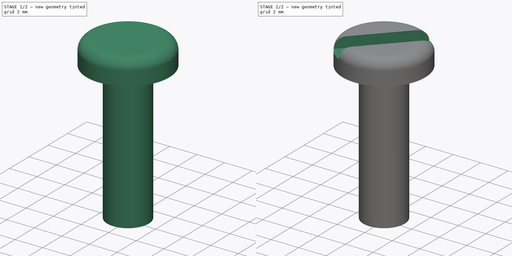
[diagram: build sequence overview — one tinted view per stage of 2, left to right]
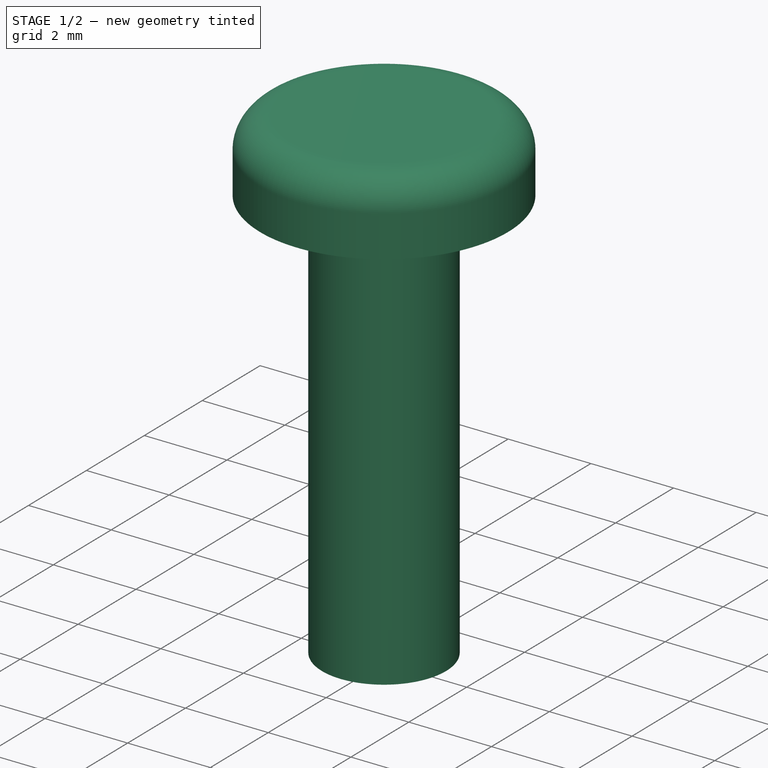
[diagram: stage 1 of 2 — iso view after this stage's code; geometry added in this stage tinted green]
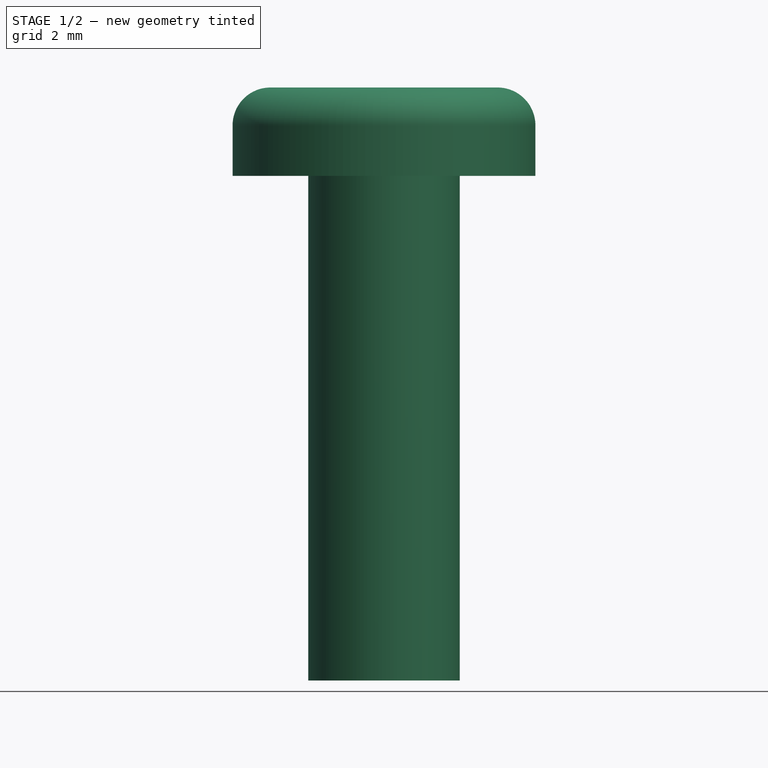
[diagram: stage 1 of 2 — front view after this stage's code; geometry added in this stage tinted green]
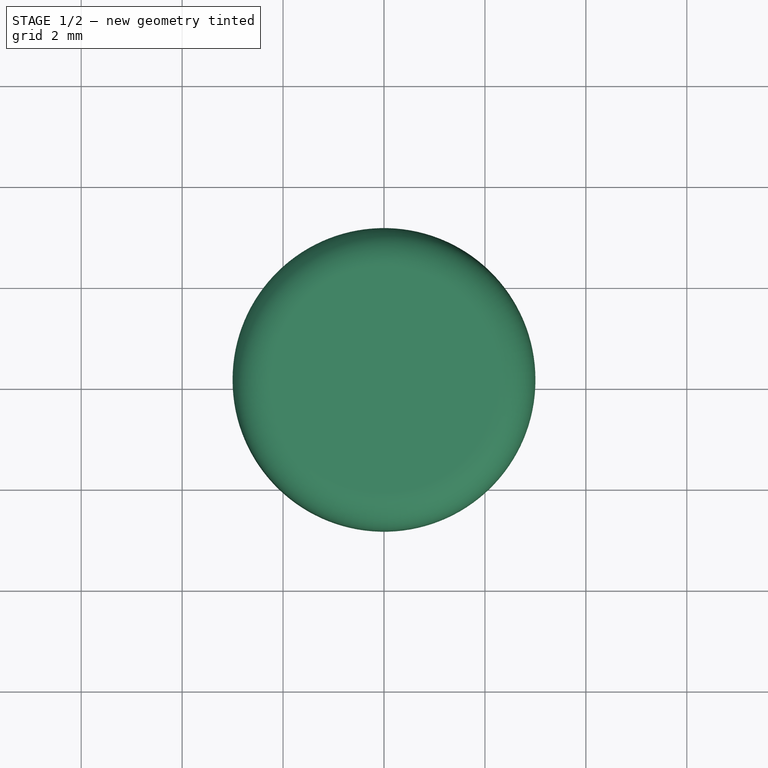
[diagram: stage 1 of 2 — top view after this stage's code; geometry added in this stage tinted green]
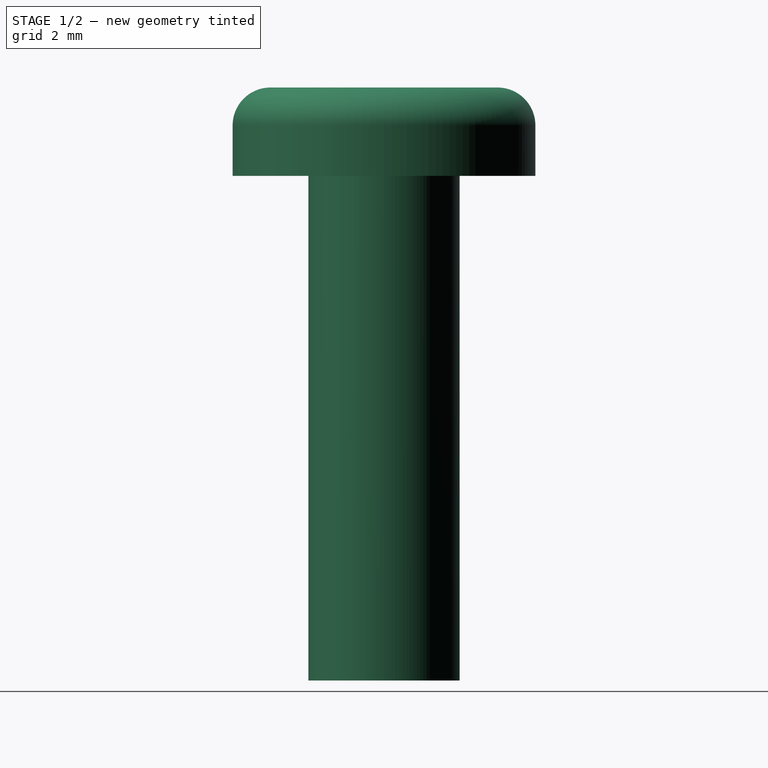
[diagram: stage 1 of 2 — right view after this stage's code; geometry added in this stage tinted green]
FCSTD DOCUMENT  (FreeCAD 0.19R)
Label: vis_tete_ronde_M3_10mm
License: All rights reserved
LicenseURL: http://en.wikipedia.org/wiki/All_rights_reserved
objects: Sketcher::SketchObject×2, PartDesign::Revolution×1, PartDesign::Pocket×1, PartDesign::Body×1
note: 7 computed .brp shape members not serialized (recipe doc carries the construction recipe); baked Part::Feature solids carry a one-line shape summary decoded from their .brp

FEATURE [Sketcher::SketchObject] Sketch
  FullyConstrained = true
  MapMode = 5
  Placement = pos=(0,0,0) rot=(1,0,0;1.5708rad)
  Support = -> [XZ_Plane]
  sketch-geometry (7):
    g0: LineSegment StartX=0 StartY=0 StartZ=0 EndX=0 EndY=11.75 EndZ=0
    g1: LineSegment StartX=0 StartY=11.75 StartZ=0 EndX=2.25 EndY=11.75 EndZ=0
    g2: LineSegment StartX=3 StartY=11 StartZ=0 EndX=3 EndY=10 EndZ=0
    g3: LineSegment StartX=3 StartY=10 StartZ=0 EndX=1.5 EndY=10 EndZ=0
    g4: LineSegment StartX=1.5 StartY=10 StartZ=0 EndX=1.5 EndY=0 EndZ=0
    g5: LineSegment StartX=1.5 StartY=0 StartZ=0 EndX=0 EndY=0 EndZ=0
    g6: ArcOfCircle CenterX=2.25 CenterY=11 CenterZ=0 NormalX=0 NormalY=0 NormalZ=1 AngleXU=0 Radius=0.75 StartAngle=0 EndAngle=1.5708
  constraints (19):
    c: Coincident(g-1,g0)
    c: PointOnObject(g0,g-2)
    c: Coincident(g0,g1)
    c: Horizontal(g1)
    c: Vertical(g2)
    c: Coincident(g2,g3)
    c: Horizontal(g3)
    c: Coincident(g3,g4)
    c: PointOnObject(g4,g-1)
    c: Vertical(g4)
    c: Coincident(g4,g5)
    c: Coincident(g5,g0)
    c: DistanceX(g5,g5) = 1.5
    c: DistanceX(g0,g2) = 3
    c: Tangent(g2,g6) = 1.5708
    c: Tangent(g1,g6) = 1.5708
    c: Radius(g6) = 0.75
    c: DistanceY(g3,g0) = 1.75
    c: DistanceY(g4,g4) = 10
FEATURE [PartDesign::Revolution] Revolution
  Angle = 360
  Axis = (0,-2e-16,1)
  Base = (0,0,0)
  Placement = pos=(0,0,0) rot=(1,0,0;1.5708rad)
  Profile = -> Sketch
  ReferenceAxis = -> Sketch [V_Axis]
  Reversed = true
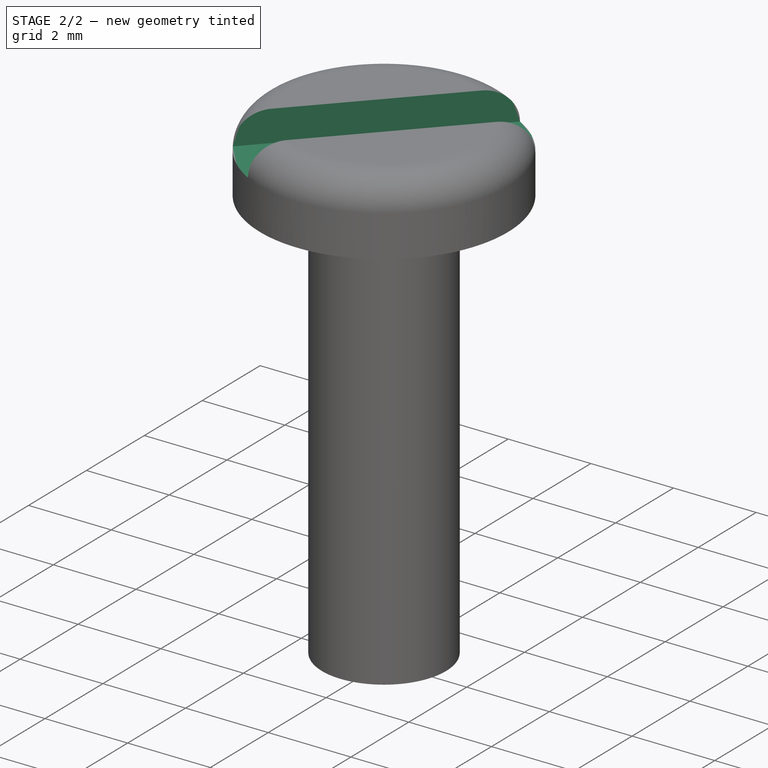
[diagram: stage 2 of 2 — iso view after this stage's code; geometry added in this stage tinted green]
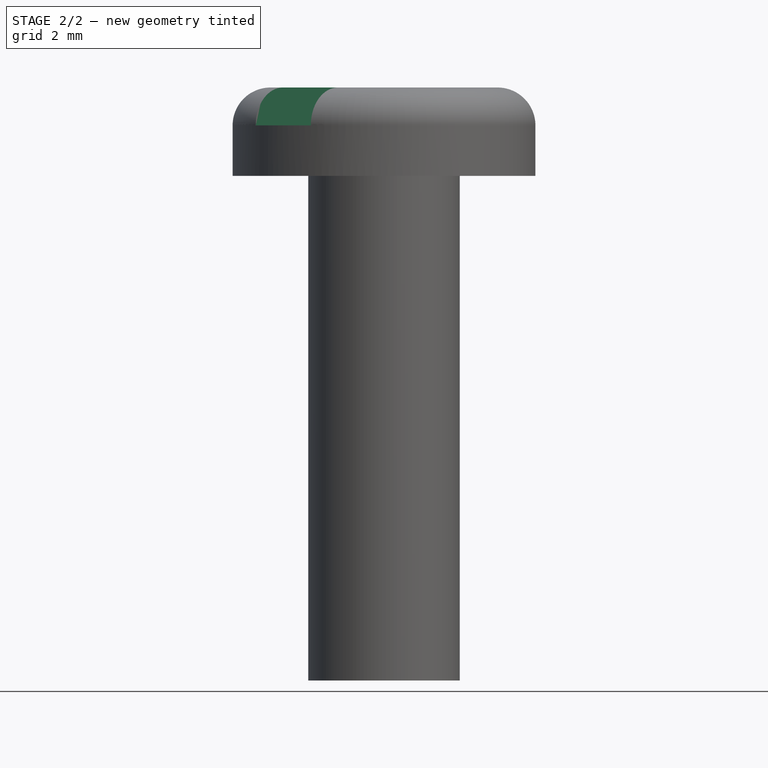
[diagram: stage 2 of 2 — front view after this stage's code; geometry added in this stage tinted green]
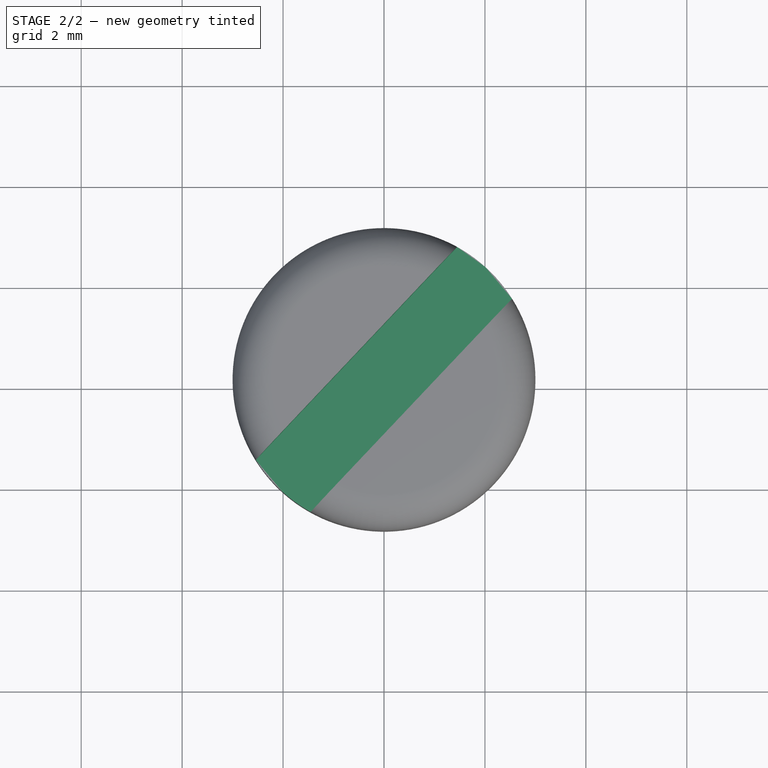
[diagram: stage 2 of 2 — top view after this stage's code; geometry added in this stage tinted green]
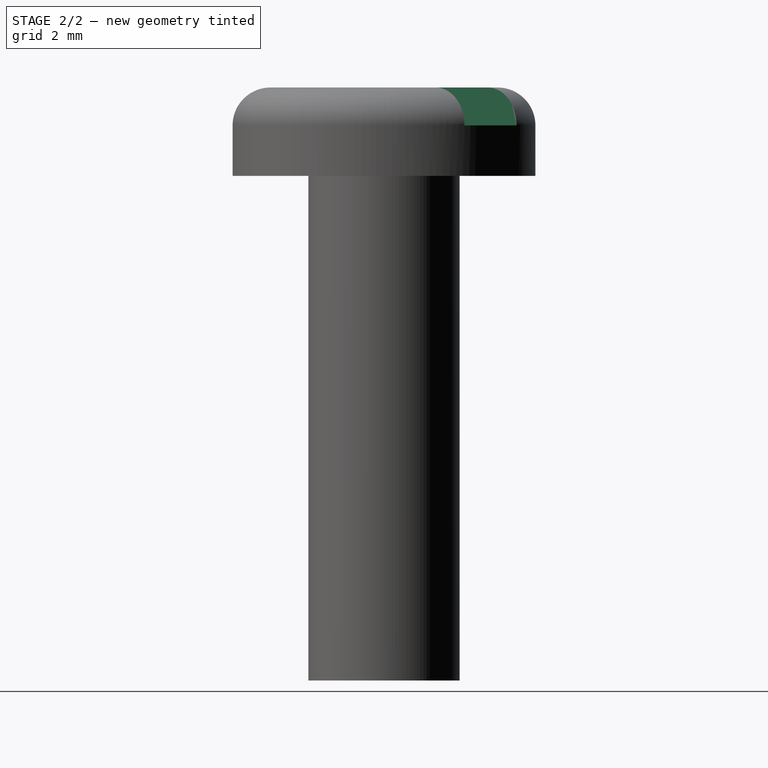
[diagram: stage 2 of 2 — right view after this stage's code; geometry added in this stage tinted green]
FEATURE [Sketcher::SketchObject] Sketch001
  FullyConstrained = false
  MapMode = 5
  Placement = pos=(0,-2.6e-15,11.75) rot=(0,0,1;3.14159rad)
  Support = -> [Revolution]
  sketch-geometry (6):
    g0: LineSegment StartX=-3.27478 StartY=-2.37271 StartZ=0 EndX=2.18469 EndY=3.4031 EndZ=0
    g1: LineSegment StartX=2.18469 StartY=3.4031 StartZ=0 EndX=3.27478 EndY=2.37271 EndZ=0
    g2: LineSegment StartX=3.27478 StartY=2.37271 StartZ=0 EndX=-2.18469 EndY=-3.4031 EndZ=0
    g3: LineSegment StartX=-2.18469 StartY=-3.4031 StartZ=0 EndX=-3.27478 EndY=-2.37271 EndZ=0
    g4: LineSegment StartX=2.18469 StartY=3.4031 StartZ=0 EndX=-2.18469 EndY=-3.4031 EndZ=0
    g5: LineSegment StartX=-3.27478 StartY=-2.37271 StartZ=0 EndX=3.27478 EndY=2.37271 EndZ=0
  constraints (14):
    c: Coincident(g0,g1)
    c: Coincident(g1,g2)
    c: Coincident(g2,g3)
    c: Coincident(g3,g0)
    c: Perpendicular(g3,g0)
    c: Perpendicular(g2,g3)
    c: Perpendicular(g2,g1)
    c: Coincident(g4,g0)
    c: Coincident(g4,g2)
    c: Coincident(g5,g0)
    c: Coincident(g5,g1)
    c: PointOnObject(g-1,g4)
    c: PointOnObject(g-1,g5)
    c: Distance(g0,g1) = 1.5
FEATURE [PartDesign::Pocket] Pocket
  BaseFeature = -> Revolution
  Length = 0.75
  Length2 = 100
  Placement = pos=(0,0,0) rot=(1,0,0;1.5708rad)
  Profile = -> Sketch001
  Type = 0
FEATURE [PartDesign::Body] Body
  Group = -> [Sketch,Revolution,Sketch001,Pocket]
  Origin = -> Origin
  Tip = -> Pocket
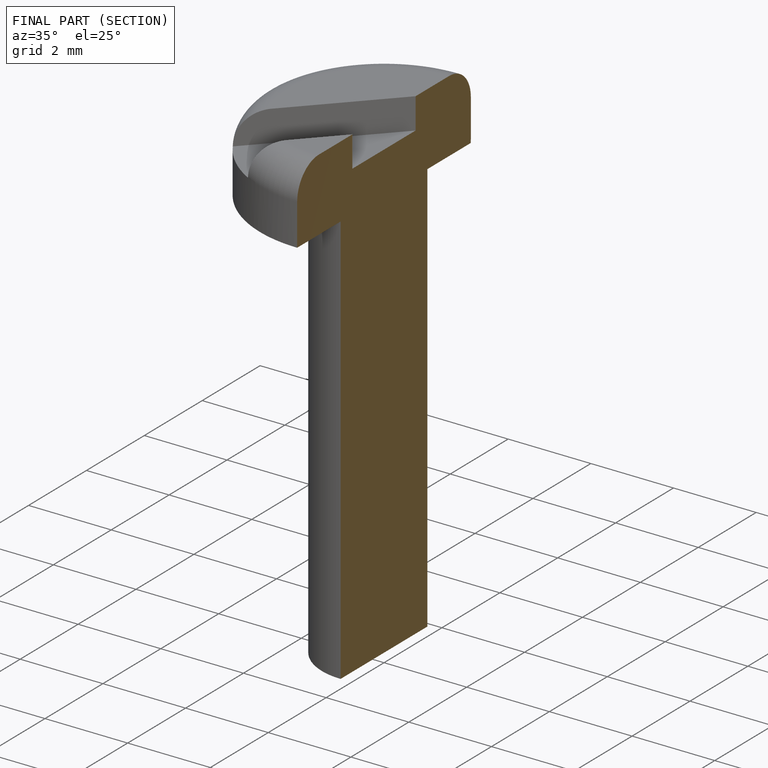
[diagram: finished part — half-section view (interior)]
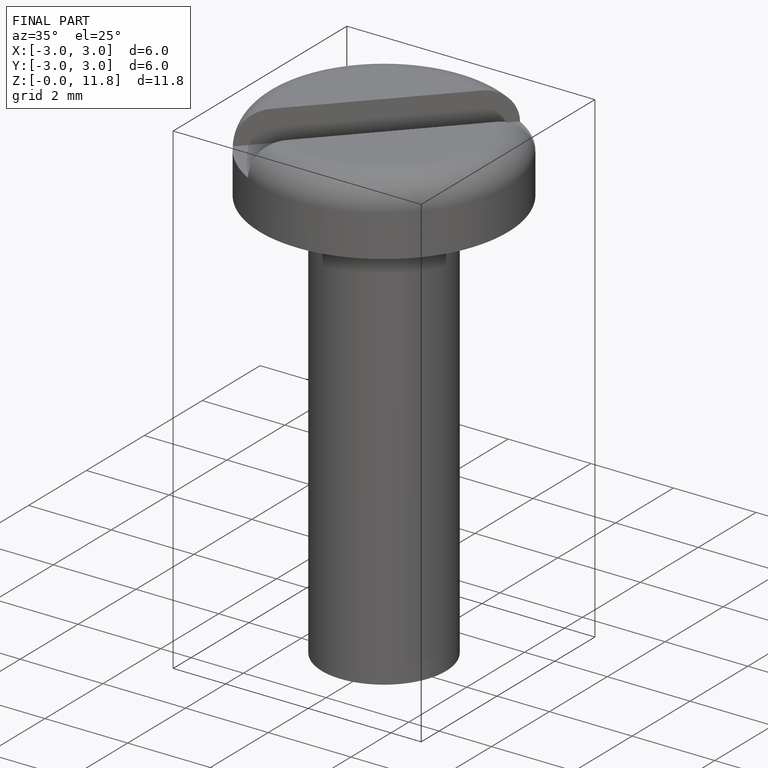
[diagram: finished part — iso view with bounding-box wireframe]
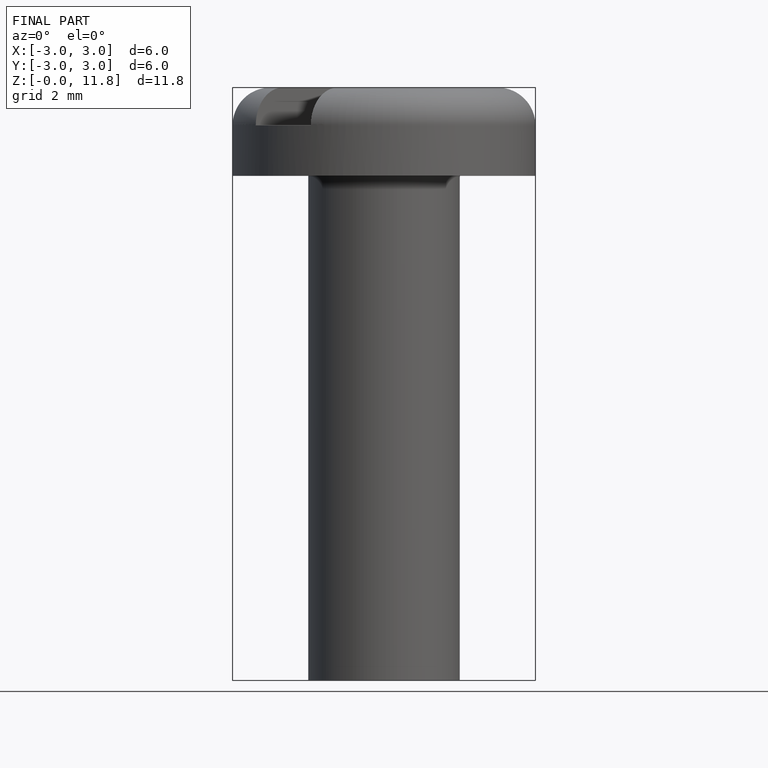
[diagram: finished part — front view with bounding-box wireframe]
